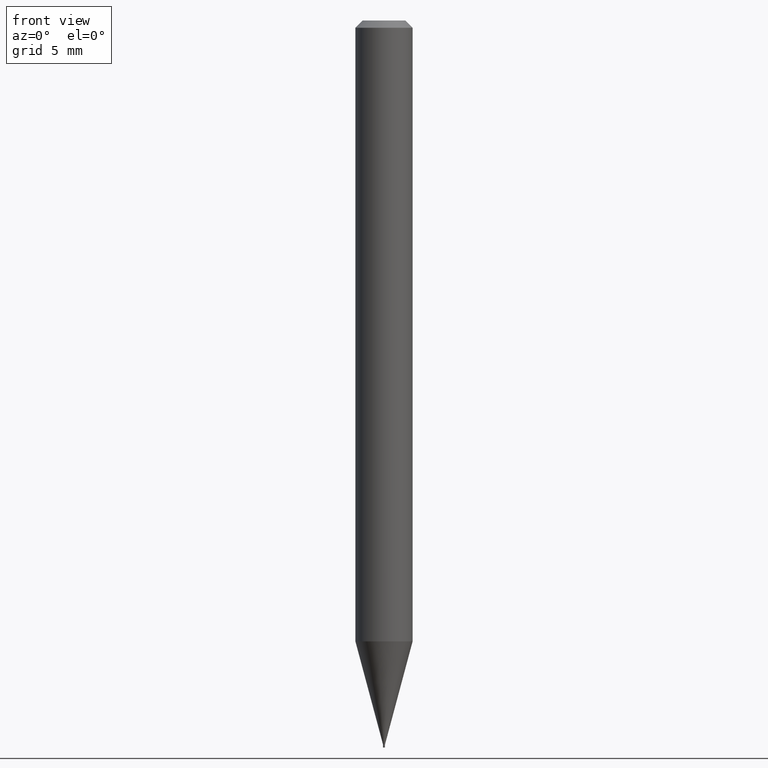
[diagram: clean part render]
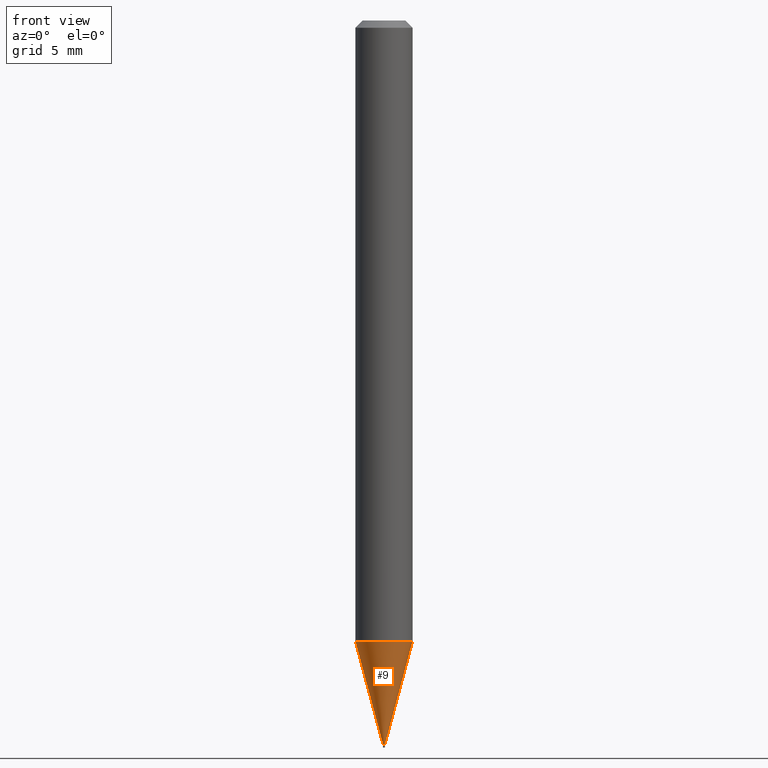
[diagram: same view with one face highlighted and labeled with its STEP entity id]
A machine part, front view. The second image highlights one B-rep face of the part: STEP entity #9.
In plain terms, the highlighted conical surface has half-angle 15 deg.
Its self-contained STEP definition (entity closure, byte-faithful):
#9 = ADVANCED_FACE ( 'NONE', ( #110 ), #335, .T. ) ;
#11 = CIRCLE ( 'NONE', #314, 0.05904999999999999832 ) ;
#19 = CARTESIAN_POINT ( 'NONE',  ( 0.05904999999999999138, -4.884931188144145618E-15, -1.280999898887817512 ) ) ;
#53 = CARTESIAN_POINT ( 'NONE',  ( -0.001949999999999922715, -4.627889220789327606E-15, -1.494099999999999984 ) ) ;
#68 = CARTESIAN_POINT ( 'NONE',  ( 3.653774943321212865E-29, -5.216622268365544435E-15, -1.494099999999999984 ) ) ;
#95 = VERTEX_POINT ( 'NONE', #191 ) ;
#102 = DIRECTION ( 'NONE',  ( 1.000000000000000000, -6.982962677686435527E-15, 0.000000000000000000 ) ) ;
#110 = FACE_OUTER_BOUND ( 'NONE', #347, .T. ) ;
#147 = VECTOR ( 'NONE', #200, 39.37007874015747433 ) ;
#149 = DIRECTION ( 'NONE',  ( 1.000000000000000000, -6.982962677686435527E-15, 0.000000000000000000 ) ) ;
#157 = CIRCLE ( 'NONE', #258, 0.001949999999999922715 ) ;
#169 = CARTESIAN_POINT ( 'NONE',  ( -0.001949999999999922715, -5.202766685018222429E-15, -1.494099999999999984 ) ) ;
#176 = EDGE_CURVE ( 'NONE', #427, #245, #11, .T. ) ;
#178 = ORIENTED_EDGE ( 'NONE', *, *, #409, .T. ) ;
#182 = DIRECTION ( 'NONE',  ( -2.445468806185136597E-29, 3.491481338843145583E-15, 1.000000000000000000 ) ) ;
#191 = CARTESIAN_POINT ( 'NONE',  ( 0.001949999999999922715, -5.230239045587032162E-15, -1.494099999999999984 ) ) ;
#200 = DIRECTION ( 'NONE',  ( 0.2588190451025213501, 1.565188264969621968E-15, 0.9659258262890682012 ) ) ;
#210 = VERTEX_POINT ( 'NONE', #53 ) ;
#218 = DIRECTION ( 'NONE',  ( -2.445468806185136597E-29, 3.491481338843145583E-15, 1.000000000000000000 ) ) ;
#225 = DIRECTION ( 'NONE',  ( 1.000000000000000000, -6.982962677686273021E-15, 0.000000000000000000 ) ) ;
#244 = CARTESIAN_POINT ( 'NONE',  ( -0.05904999999999999138, -4.053011756560431993E-15, -1.280999898887817512 ) ) ;
#245 = VERTEX_POINT ( 'NONE', #19 ) ;
#258 = AXIS2_PLACEMENT_3D ( 'NONE', #337, #182, #102 ) ;
#274 = CARTESIAN_POINT ( 'NONE',  ( 0.001949999999999922715, -5.230239045587032162E-15, -1.494099999999999984 ) ) ;
#289 = CARTESIAN_POINT ( 'NONE',  ( 3.132645293456470975E-29, -4.472587242026771486E-15, -1.280999898887817512 ) ) ;
#301 = ORIENTED_EDGE ( 'NONE', *, *, #364, .T. ) ;
#306 = ORIENTED_EDGE ( 'NONE', *, *, #374, .F. ) ;
#314 = AXIS2_PLACEMENT_3D ( 'NONE', #289, #438, #225 ) ;
#315 = VECTOR ( 'NONE', #451, 39.37007874015747433 ) ;
#330 = LINE ( 'NONE', #274, #147 ) ;
#331 = LINE ( 'NONE', #169, #315 ) ;
#335 = CONICAL_SURFACE ( 'NONE', #368, 0.001949999999999922715, 0.2617993877991500740 ) ;
#337 = CARTESIAN_POINT ( 'NONE',  ( 3.653774943321212865E-29, -5.216622268365544435E-15, -1.494099999999999984 ) ) ;
#347 = EDGE_LOOP ( 'NONE', ( #306, #178, #301, #355 ) ) ;
#355 = ORIENTED_EDGE ( 'NONE', *, *, #176, .F. ) ;
#364 = EDGE_CURVE ( 'NONE', #95, #245, #330, .T. ) ;
#368 = AXIS2_PLACEMENT_3D ( 'NONE', #68, #218, #149 ) ;
#374 = EDGE_CURVE ( 'NONE', #210, #427, #331, .T. ) ;
#409 = EDGE_CURVE ( 'NONE', #210, #95, #157, .T. ) ;
#427 = VERTEX_POINT ( 'NONE', #244 ) ;
#438 = DIRECTION ( 'NONE',  ( -2.445468806185136597E-29, 3.491481338843145583E-15, 1.000000000000000000 ) ) ;
#451 = DIRECTION ( 'NONE',  ( -0.2588190451025213501, 5.211531920934551042E-15, 0.9659258262890682012 ) ) ;